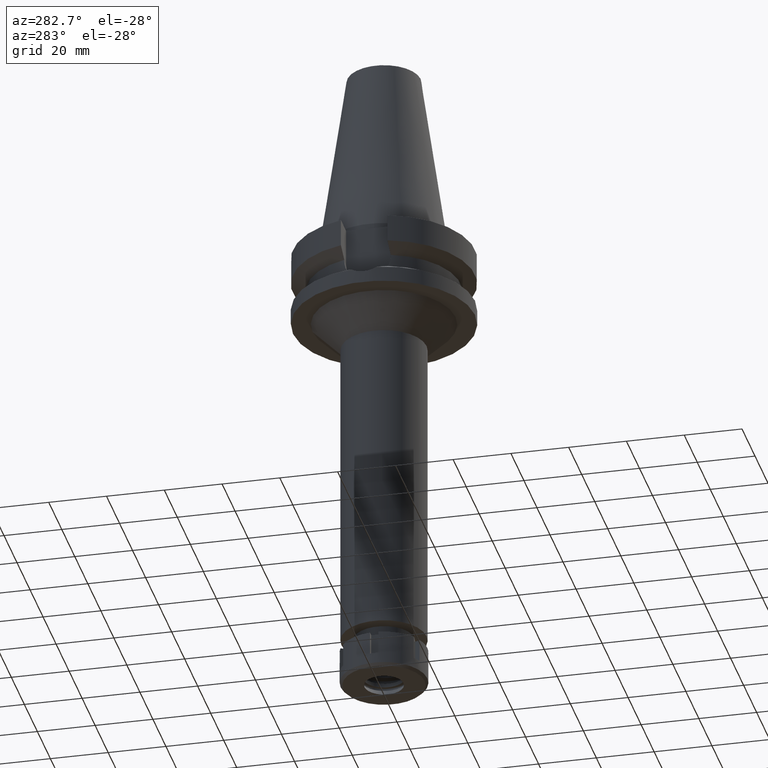
[diagram: clean part render]
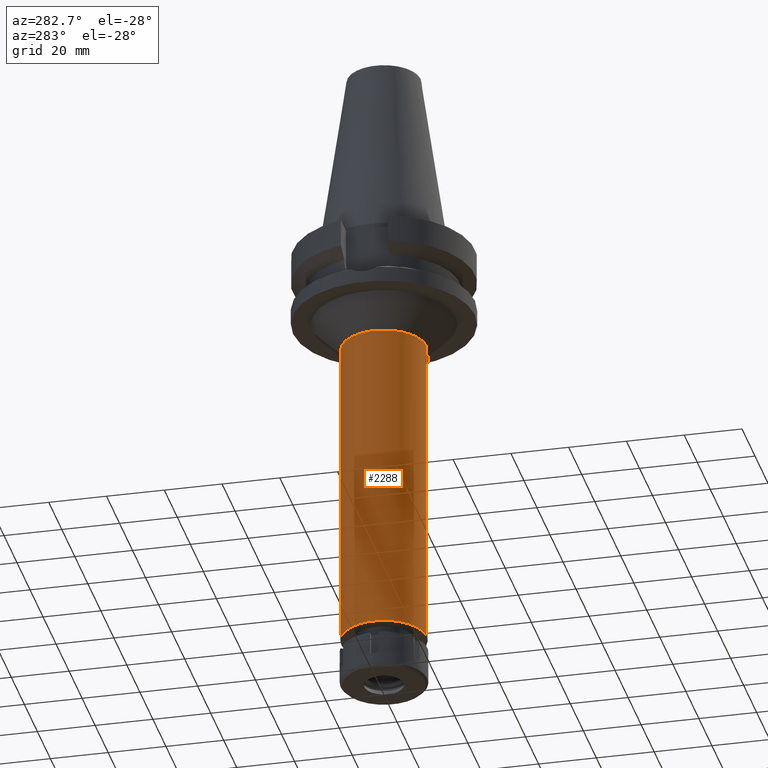
[diagram: same view with one face highlighted and labeled with its STEP entity id]
A machine part, auxiliary view. The second image highlights one B-rep face of the part: STEP entity #2288.
In plain terms, the highlighted cylindrical surface (partial cylindrical patch) has radius 14.75 mm, axis along (0, 0, -1).
Its self-contained STEP definition (entity closure, byte-faithful):
#121 = VECTOR ( 'NONE', #3138, 1000.000000000000000 ) ;
#265 = ORIENTED_EDGE ( 'NONE', *, *, #3330, .T. ) ;
#365 = VECTOR ( 'NONE', #1055, 1000.000000000000000 ) ;
#657 = FACE_OUTER_BOUND ( 'NONE', #1335, .T. ) ;
#789 = VERTEX_POINT ( 'NONE', #3604 ) ;
#902 = LINE ( 'NONE', #2286, #121 ) ;
#988 = DIRECTION ( 'NONE',  ( 0.0000000000000000000, -1.000000000000000000, 0.0000000000000000000 ) ) ;
#1055 = DIRECTION ( 'NONE',  ( 0.0000000000000000000, 0.0000000000000000000, -1.000000000000000000 ) ) ;
#1066 = VERTEX_POINT ( 'NONE', #2167 ) ;
#1088 = EDGE_CURVE ( 'NONE', #3046, #1066, #1192, .T. ) ;
#1145 = ORIENTED_EDGE ( 'NONE', *, *, #3381, .F. ) ;
#1192 = CIRCLE ( 'NONE', #2235, 14.75000000000000000 ) ;
#1335 = EDGE_LOOP ( 'NONE', ( #3344, #1145, #265, #2402 ) ) ;
#1382 = CARTESIAN_POINT ( 'NONE',  ( 0.0000000000000000000, 14.75000000000000000, -148.0000000000000000 ) ) ;
#1389 = EDGE_CURVE ( 'NONE', #789, #3046, #902, .T. ) ;
#1392 = DIRECTION ( 'NONE',  ( 0.0000000000000000000, 1.000000000000000000, 0.0000000000000000000 ) ) ;
#1661 = AXIS2_PLACEMENT_3D ( 'NONE', #2893, #2040, #988 ) ;
#1707 = VERTEX_POINT ( 'NONE', #2816 ) ;
#1809 = DIRECTION ( 'NONE',  ( 0.0000000000000000000, -1.000000000000000000, 0.0000000000000000000 ) ) ;
#1893 = CARTESIAN_POINT ( 'NONE',  ( 0.0000000000000000000, 2.162358853253999590E-14, -148.0000000000000000 ) ) ;
#2040 = DIRECTION ( 'NONE',  ( 0.0000000000000000000, 0.0000000000000000000, -1.000000000000000000 ) ) ;
#2167 = CARTESIAN_POINT ( 'NONE',  ( 0.0000000000000000000, -14.75000000000000000, -148.0000000000000000 ) ) ;
#2171 = LINE ( 'NONE', #2706, #365 ) ;
#2235 = AXIS2_PLACEMENT_3D ( 'NONE', #1893, #2752, #1392 ) ;
#2286 = CARTESIAN_POINT ( 'NONE',  ( 0.0000000000000000000, 14.75000000000000000, -37.00000000000000000 ) ) ;
#2288 = ADVANCED_FACE ( 'NONE', ( #657 ), #2348, .T. ) ;
#2309 = AXIS2_PLACEMENT_3D ( 'NONE', #2318, #3441, #1809 ) ;
#2318 = CARTESIAN_POINT ( 'NONE',  ( 0.0000000000000000000, 2.162358853253999590E-14, 76.56999999999999318 ) ) ;
#2348 = CYLINDRICAL_SURFACE ( 'NONE', #2309, 14.75000000000000000 ) ;
#2402 = ORIENTED_EDGE ( 'NONE', *, *, #1389, .T. ) ;
#2531 = CIRCLE ( 'NONE', #1661, 14.75000000000000000 ) ;
#2706 = CARTESIAN_POINT ( 'NONE',  ( 0.0000000000000000000, -14.75000000000000000, -37.00000000000000000 ) ) ;
#2752 = DIRECTION ( 'NONE',  ( 0.0000000000000000000, 0.0000000000000000000, 1.000000000000000000 ) ) ;
#2816 = CARTESIAN_POINT ( 'NONE',  ( 0.0000000000000000000, -14.75000000000000000, -37.00000000000000000 ) ) ;
#2893 = CARTESIAN_POINT ( 'NONE',  ( 0.0000000000000000000, 0.0000000000000000000, -37.00000000000000000 ) ) ;
#3046 = VERTEX_POINT ( 'NONE', #1382 ) ;
#3138 = DIRECTION ( 'NONE',  ( 0.0000000000000000000, 0.0000000000000000000, -1.000000000000000000 ) ) ;
#3330 = EDGE_CURVE ( 'NONE', #1707, #789, #2531, .T. ) ;
#3344 = ORIENTED_EDGE ( 'NONE', *, *, #1088, .T. ) ;
#3381 = EDGE_CURVE ( 'NONE', #1707, #1066, #2171, .T. ) ;
#3441 = DIRECTION ( 'NONE',  ( 0.0000000000000000000, 0.0000000000000000000, -1.000000000000000000 ) ) ;
#3604 = CARTESIAN_POINT ( 'NONE',  ( 0.0000000000000000000, 14.75000000000000000, -37.00000000000000000 ) ) ;